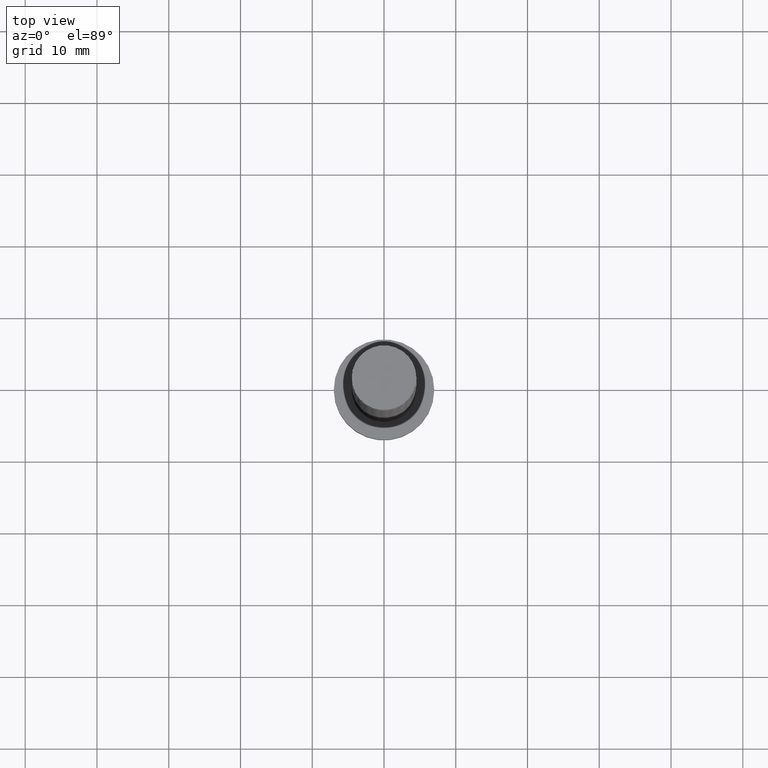
[diagram: clean part render]
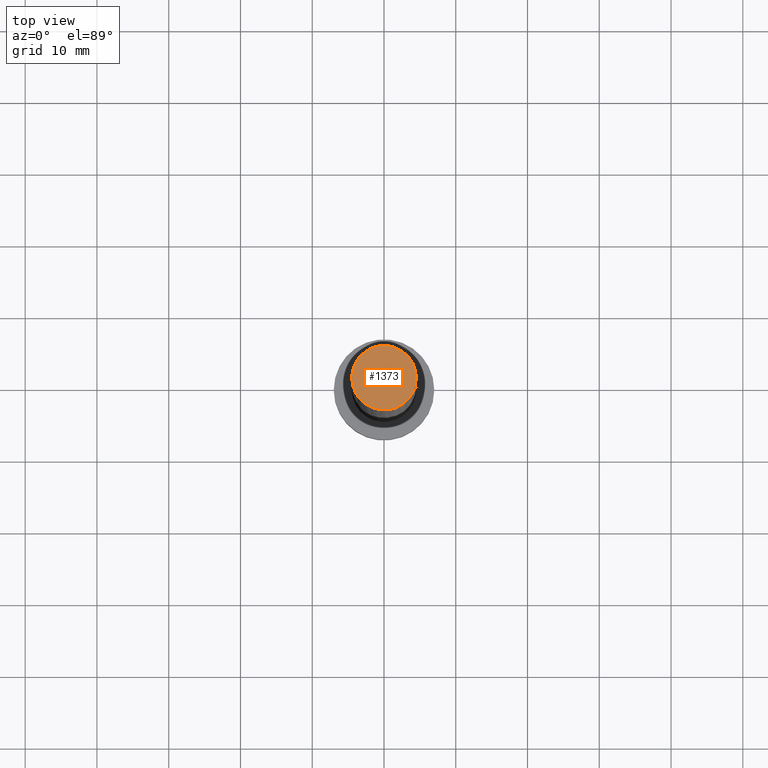
[diagram: same view with one face highlighted and labeled with its STEP entity id]
A machine part, top view. The second image highlights one B-rep face of the part: STEP entity #1373.
In plain terms, the highlighted planar face has unit normal (0, 0, 1).
Its self-contained STEP definition (entity closure, byte-faithful):
#36 = DIRECTION ( 'NONE',  ( 0.000000000000000000, 0.000000000000000000, 1.000000000000000000 ) ) ;
#39 = AXIS2_PLACEMENT_3D ( 'NONE', #1437, #379, #483 ) ;
#127 = EDGE_LOOP ( 'NONE', ( #603, #450 ) ) ;
#129 = EDGE_CURVE ( 'NONE', #1101, #210, #808, .T. ) ;
#144 = DIRECTION ( 'NONE',  ( 1.000000000000000000, 0.000000000000000000, 0.000000000000000000 ) ) ;
#210 = VERTEX_POINT ( 'NONE', #1103 ) ;
#254 = DIRECTION ( 'NONE',  ( 1.000000000000000000, 0.000000000000000000, -0.000000000000000000 ) ) ;
#379 = DIRECTION ( 'NONE',  ( 0.000000000000000000, 0.000000000000000000, 1.000000000000000000 ) ) ;
#450 = ORIENTED_EDGE ( 'NONE', *, *, #1318, .T. ) ;
#483 = DIRECTION ( 'NONE',  ( 1.000000000000000000, 0.000000000000000000, 0.000000000000000000 ) ) ;
#557 = AXIS2_PLACEMENT_3D ( 'NONE', #1284, #1175, #144 ) ;
#603 = ORIENTED_EDGE ( 'NONE', *, *, #129, .T. ) ;
#808 = CIRCLE ( 'NONE', #557, 4.500000000000000888 ) ;
#833 = PLANE ( 'NONE',  #1090 ) ;
#840 = CARTESIAN_POINT ( 'NONE',  ( 0.000000000000000000, 0.000000000000000000, 100.0000000000000000 ) ) ;
#847 = FACE_OUTER_BOUND ( 'NONE', #127, .T. ) ;
#976 = CIRCLE ( 'NONE', #39, 4.500000000000000888 ) ;
#1090 = AXIS2_PLACEMENT_3D ( 'NONE', #840, #36, #254 ) ;
#1101 = VERTEX_POINT ( 'NONE', #1277 ) ;
#1103 = CARTESIAN_POINT ( 'NONE',  ( 4.500000000000000888, 5.510910596163089556E-16, 100.0000000000000000 ) ) ;
#1175 = DIRECTION ( 'NONE',  ( 0.000000000000000000, 0.000000000000000000, 1.000000000000000000 ) ) ;
#1277 = CARTESIAN_POINT ( 'NONE',  ( -4.500000000000000888, 0.000000000000000000, 100.0000000000000000 ) ) ;
#1284 = CARTESIAN_POINT ( 'NONE',  ( 0.000000000000000000, 0.000000000000000000, 100.0000000000000000 ) ) ;
#1318 = EDGE_CURVE ( 'NONE', #210, #1101, #976, .T. ) ;
#1373 = ADVANCED_FACE ( 'NONE', ( #847 ), #833, .T. ) ;
#1437 = CARTESIAN_POINT ( 'NONE',  ( 0.000000000000000000, 0.000000000000000000, 100.0000000000000000 ) ) ;